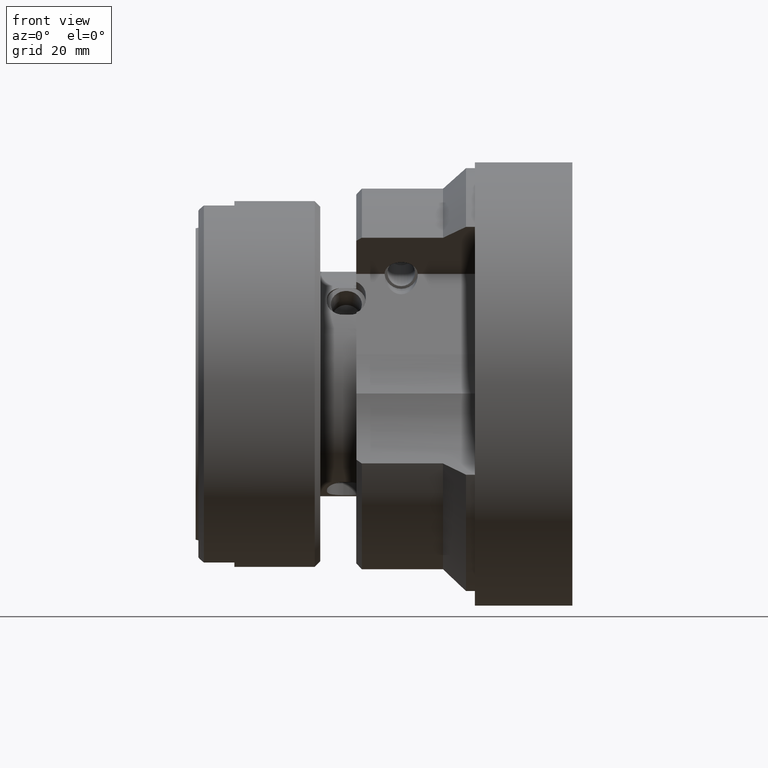
[diagram: clean part render]
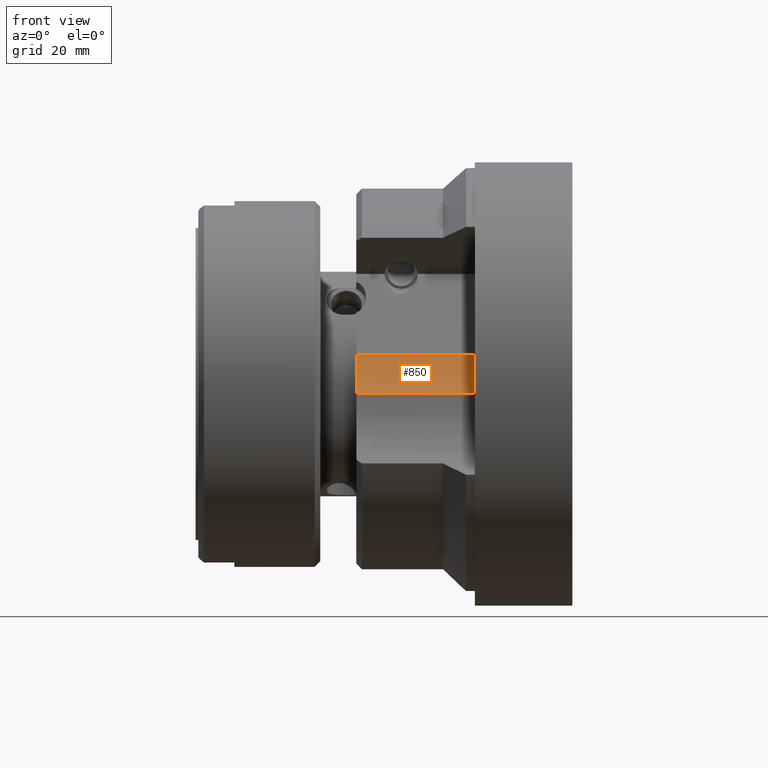
[diagram: same view with one face highlighted and labeled with its STEP entity id]
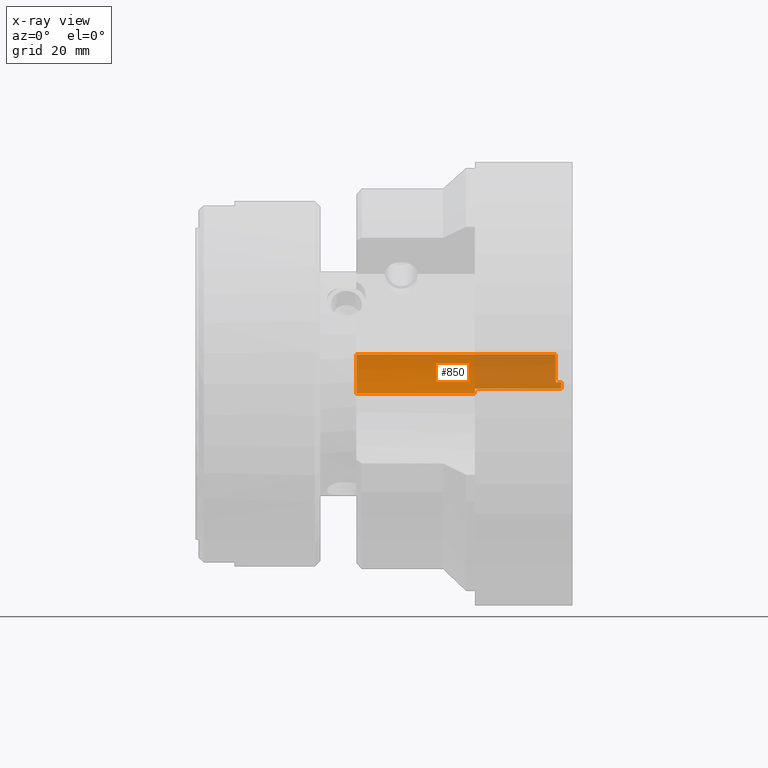
[diagram: x-ray of the same camera — body ghosted, the highlighted face saturated]
A machine part, front view. The second image highlights one B-rep face of the part: STEP entity #850.
The next image is the same camera in x-ray: the body ghosted, the highlighted face saturated — about 38% of this face is hidden behind the body in this view.
In plain terms, the highlighted cylindrical surface (partial cylindrical patch) has radius 18 mm, axis along (1, -0, -0).
Its self-contained STEP definition (entity closure, byte-faithful):
#622 = AXIS2_PLACEMENT_3D ( 'NONE', #4555, #4554, #4556 ) ;
#728 = VERTEX_POINT ( 'NONE', #4768 ) ;
#754 = VERTEX_POINT ( 'NONE', #4734 ) ;
#763 = VERTEX_POINT ( 'NONE', #4725 ) ;
#794 = ORIENTED_EDGE ( 'NONE', *, *, #3290, .T. ) ;
#795 = ORIENTED_EDGE ( 'NONE', *, *, #3414, .F. ) ;
#796 = ORIENTED_EDGE ( 'NONE', *, *, #3275, .T. ) ;
#797 = ORIENTED_EDGE ( 'NONE', *, *, #3327, .T. ) ;
#798 = ORIENTED_EDGE ( 'NONE', *, *, #3248, .T. ) ;
#799 = ORIENTED_EDGE ( 'NONE', *, *, #3012, .T. ) ;
#800 = ORIENTED_EDGE ( 'NONE', *, *, #3448, .T. ) ;
#801 = ORIENTED_EDGE ( 'NONE', *, *, #3438, .T. ) ;
#850 = ADVANCED_FACE ( 'NONE', ( #2366 ), #2371, .F. ) ;
#1100 = EDGE_LOOP ( 'NONE', ( #801, #800, #799, #798, #797, #796, #795, #794 ) ) ;
#1477 = DIRECTION ( 'NONE',  ( 0.0000000000000000000, 0.0000000000000000000, 1.000000000000000000 ) ) ;
#1478 = DIRECTION ( 'NONE',  ( 1.000000000000000000, -0.0000000000000000000, -0.0000000000000000000 ) ) ;
#1479 = CARTESIAN_POINT ( 'NONE',  ( -15.60000000000000000, -37.18217042456551300, 11.99859168896778300 ) ) ;
#1544 = DIRECTION ( 'NONE',  ( 1.000000000000000000, -0.0000000000000000000, -0.0000000000000000000 ) ) ;
#1545 = CARTESIAN_POINT ( 'NONE',  ( -40.00000000000000000, -25.53206585102398700, -1.722744376647197900 ) ) ;
#1602 = DIRECTION ( 'NONE',  ( 1.000000000000000000, -0.0000000000000000000, -0.0000000000000000000 ) ) ;
#1612 = CARTESIAN_POINT ( 'NONE',  ( -40.00000000000000000, -20.45404366028676400, 5.352557160151302000 ) ) ;
#1915 = DIRECTION ( 'NONE',  ( -1.000000000000000000, 0.0000000000000000000, 0.0000000000000000000 ) ) ;
#1918 = CARTESIAN_POINT ( 'NONE',  ( -0.5000000000000073300, -23.49802289160452100, 0.3048281247358935500 ) ) ;
#2014 = DIRECTION ( 'NONE',  ( 0.0000000000000000000, 0.0000000000000000000, 1.000000000000000000 ) ) ;
#2015 = DIRECTION ( 'NONE',  ( -1.000000000000000000, -0.0000000000000000000, -0.0000000000000000000 ) ) ;
#2016 = CARTESIAN_POINT ( 'NONE',  ( -37.00000000000001400, -37.18217042456551300, 11.99859168896778300 ) ) ;
#2062 = DIRECTION ( 'NONE',  ( 0.0000000000000000000, 0.0000000000000000000, -1.000000000000000000 ) ) ;
#2063 = DIRECTION ( 'NONE',  ( 1.000000000000000000, 0.0000000000000000000, 0.0000000000000000000 ) ) ;
#2064 = CARTESIAN_POINT ( 'NONE',  ( -1.000000000000000900, -37.18217042456551300, 11.99859168896778300 ) ) ;
#2366 = FACE_OUTER_BOUND ( 'NONE', #1100, .T. ) ;
#2371 = CYLINDRICAL_SURFACE ( 'NONE', #622, 17.99999999999999600 ) ;
#2393 = VERTEX_POINT ( 'NONE', #5184 ) ;
#2430 = VERTEX_POINT ( 'NONE', #5300 ) ;
#2505 = AXIS2_PLACEMENT_3D ( 'NONE', #5001, #5011, #5020 ) ;
#2600 = AXIS2_PLACEMENT_3D ( 'NONE', #2064, #2063, #2062 ) ;
#2607 = AXIS2_PLACEMENT_3D ( 'NONE', #1479, #1478, #1477 ) ;
#2618 = AXIS2_PLACEMENT_3D ( 'NONE', #2016, #2015, #2014 ) ;
#2664 = CIRCLE ( 'NONE', #2505, 18.00000000000000000 ) ;
#2706 = CIRCLE ( 'NONE', #2600, 17.99999999999999600 ) ;
#2714 = CIRCLE ( 'NONE', #2618, 17.99999999999999600 ) ;
#2768 = LINE ( 'NONE', #1918, #2778 ) ;
#2778 = VECTOR ( 'NONE', #1915, 1000.000000000000000 ) ;
#3012 = EDGE_CURVE ( 'NONE', #728, #2393, #3955, .T. ) ;
#3051 = VERTEX_POINT ( 'NONE', #4898 ) ;
#3056 = VERTEX_POINT ( 'NONE', #4893 ) ;
#3059 = VERTEX_POINT ( 'NONE', #4890 ) ;
#3248 = EDGE_CURVE ( 'NONE', #2393, #763, #2664, .T. ) ;
#3275 = EDGE_CURVE ( 'NONE', #754, #3059, #2706, .T. ) ;
#3290 = EDGE_CURVE ( 'NONE', #3056, #3051, #2714, .T. ) ;
#3327 = EDGE_CURVE ( 'NONE', #763, #754, #2768, .T. ) ;
#3414 = EDGE_CURVE ( 'NONE', #3056, #3059, #3595, .T. ) ;
#3438 = EDGE_CURVE ( 'NONE', #3051, #2430, #3648, .T. ) ;
#3448 = EDGE_CURVE ( 'NONE', #2430, #728, #3665, .T. ) ;
#3595 = LINE ( 'NONE', #1612, #3603 ) ;
#3603 = VECTOR ( 'NONE', #1602, 1000.000000000000000 ) ;
#3648 = LINE ( 'NONE', #1545, #3651 ) ;
#3651 = VECTOR ( 'NONE', #1544, 1000.000000000000000 ) ;
#3665 = CIRCLE ( 'NONE', #2607, 17.99999999999999600 ) ;
#3955 = LINE ( 'NONE', #5005, #3958 ) ;
#3958 = VECTOR ( 'NONE', #5256, 1000.000000000000000 ) ;
#4554 = DIRECTION ( 'NONE',  ( 1.000000000000000000, -0.0000000000000000000, -0.0000000000000000000 ) ) ;
#4555 = CARTESIAN_POINT ( 'NONE',  ( -40.00000000000000000, -37.18217042456551300, 11.99859168896778300 ) ) ;
#4556 = DIRECTION ( 'NONE',  ( 0.0000000000000000000, 0.0000000000000000000, -1.000000000000000000 ) ) ;
#4725 = CARTESIAN_POINT ( 'NONE',  ( 0.0000000000000000000, -23.49802289160452400, 0.3048281247358866100 ) ) ;
#4734 = CARTESIAN_POINT ( 'NONE',  ( -1.000000000000000900, -23.49802289160452100, 0.3048281247358926600 ) ) ;
#4768 = CARTESIAN_POINT ( 'NONE',  ( -15.60000000000000000, -24.60686609452225300, -0.8801396540952903800 ) ) ;
#4890 = CARTESIAN_POINT ( 'NONE',  ( -1.000000000000000900, -20.45404366028676400, 5.352557160151302000 ) ) ;
#4893 = CARTESIAN_POINT ( 'NONE',  ( -37.00000000000001400, -20.45404366028676400, 5.352557160151302000 ) ) ;
#4898 = CARTESIAN_POINT ( 'NONE',  ( -37.00000000000001400, -25.53206585102398700, -1.722744376647197900 ) ) ;
#5001 = CARTESIAN_POINT ( 'NONE',  ( 0.0000000000000000000, -37.18217042456551300, 11.99859168896778300 ) ) ;
#5005 = CARTESIAN_POINT ( 'NONE',  ( -7.799001791788065900, -24.60686609452225300, -0.8801396540952900500 ) ) ;
#5011 = DIRECTION ( 'NONE',  ( 1.000000000000000000, 0.0000000000000000000, 0.0000000000000000000 ) ) ;
#5020 = DIRECTION ( 'NONE',  ( 0.0000000000000000000, 0.8660254037844362700, -0.5000000000000040000 ) ) ;
#5184 = CARTESIAN_POINT ( 'NONE',  ( 0.0000000000000000000, -24.60686609452225300, -0.8801396540952900500 ) ) ;
#5256 = DIRECTION ( 'NONE',  ( 1.000000000000000000, -0.0000000000000000000, -0.0000000000000000000 ) ) ;
#5300 = CARTESIAN_POINT ( 'NONE',  ( -15.60000000000000000, -25.53206585102398700, -1.722744376647197900 ) ) ;